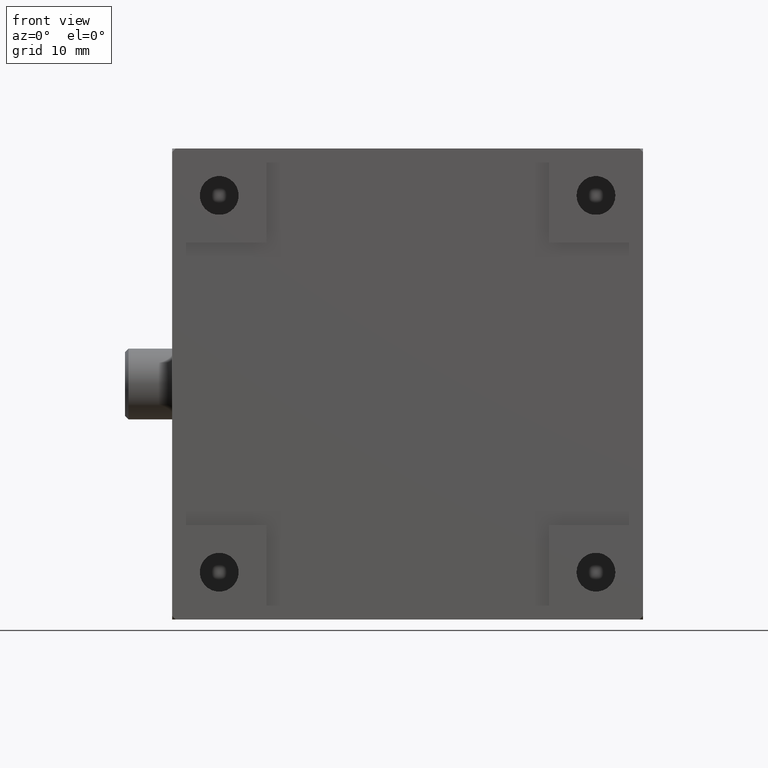
[diagram: clean part render]
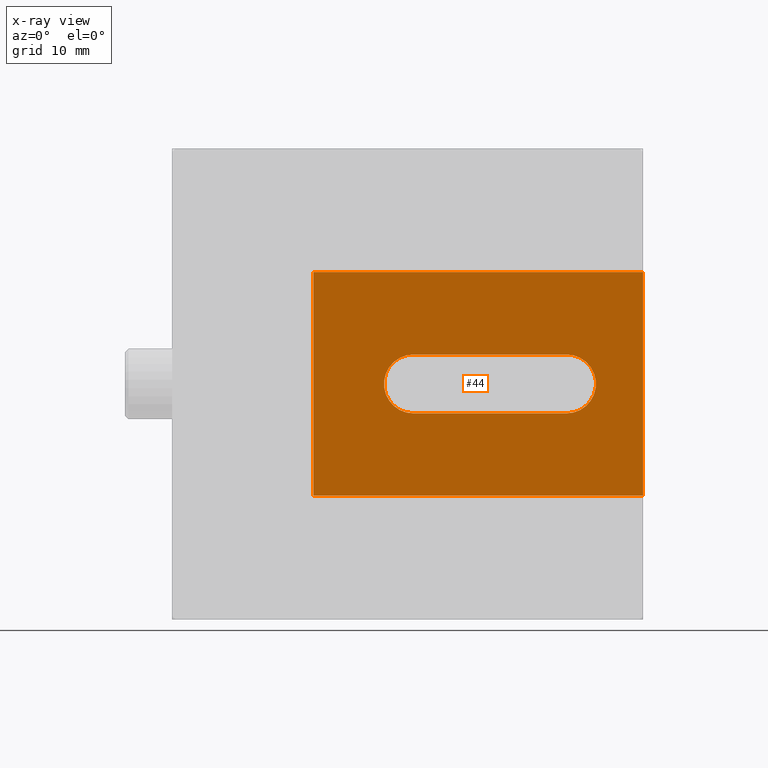
[diagram: x-ray — body ghosted, one internal face saturated and labeled with its STEP entity id]
A machine part, front view, then the same camera in x-ray: the body is ghosted and one INTERNAL B-rep face — a face not visible from any outside direction — is saturated and labeled: STEP entity #44.
In plain terms, the highlighted planar face has unit normal (0, 1, 0).
Its self-contained STEP definition (entity closure, byte-faithful):
#11 = VECTOR ( 'NONE', #1729, 1000.000000000000000 ) ;
#14 = LINE ( 'NONE', #2767, #2656 ) ;
#44 = ADVANCED_FACE ( 'NONE', ( #2241, #220 ), #590, .F. ) ;
#220 = FACE_OUTER_BOUND ( 'NONE', #1049, .T. ) ;
#310 = EDGE_CURVE ( 'NONE', #3871, #5048, #1492, .T. ) ;
#446 = VERTEX_POINT ( 'NONE', #2138 ) ;
#590 = PLANE ( 'NONE',  #3215 ) ;
#591 = DIRECTION ( 'NONE',  ( 0.000000000000000000, 0.000000000000000000, 1.000000000000000000 ) ) ;
#624 = EDGE_LOOP ( 'NONE', ( #4592, #3914, #1194, #1097 ) ) ;
#667 = DIRECTION ( 'NONE',  ( 0.000000000000000000, -1.000000000000000000, 0.000000000000000000 ) ) ;
#745 = CARTESIAN_POINT ( 'NONE',  ( 33.50000000000000000, 6.200000000000001066, 17.50000000000000000 ) ) ;
#775 = VECTOR ( 'NONE', #2763, 1000.000000000000000 ) ;
#785 = EDGE_CURVE ( 'NONE', #5048, #2342, #2358, .T. ) ;
#845 = EDGE_CURVE ( 'NONE', #446, #3871, #14, .T. ) ;
#855 = LINE ( 'NONE', #2467, #2527 ) ;
#871 = VERTEX_POINT ( 'NONE', #4760 ) ;
#1049 = EDGE_LOOP ( 'NONE', ( #1990, #3452, #2239, #4906 ) ) ;
#1097 = ORIENTED_EDGE ( 'NONE', *, *, #3935, .F. ) ;
#1194 = ORIENTED_EDGE ( 'NONE', *, *, #845, .F. ) ;
#1261 = VERTEX_POINT ( 'NONE', #4954 ) ;
#1406 = CARTESIAN_POINT ( 'NONE',  ( 33.50000000000000000, 6.200000000000001066, 20.00000000000000000 ) ) ;
#1492 = CIRCLE ( 'NONE', #3309, 2.499999999999998668 ) ;
#1577 = DIRECTION ( 'NONE',  ( -1.000000000000000000, 0.000000000000000000, 0.000000000000000000 ) ) ;
#1729 = DIRECTION ( 'NONE',  ( -1.000000000000000000, 0.000000000000000000, 0.000000000000000000 ) ) ;
#1790 = CARTESIAN_POINT ( 'NONE',  ( 12.00000000000000000, 6.200000000000001066, 10.50200000000000067 ) ) ;
#1906 = CARTESIAN_POINT ( 'NONE',  ( 12.00000000000000000, 6.200000000000001066, 17.50000000000000000 ) ) ;
#1990 = ORIENTED_EDGE ( 'NONE', *, *, #2184, .T. ) ;
#2001 = DIRECTION ( 'NONE',  ( 1.000000000000000000, 0.000000000000000000, 0.000000000000000000 ) ) ;
#2009 = CIRCLE ( 'NONE', #4895, 2.500000000000002220 ) ;
#2014 = EDGE_CURVE ( 'NONE', #871, #4709, #2612, .T. ) ;
#2138 = CARTESIAN_POINT ( 'NONE',  ( 33.50000000000000000, 6.200000000000001066, 22.50000000000000000 ) ) ;
#2184 = EDGE_CURVE ( 'NONE', #2218, #1261, #855, .T. ) ;
#2196 = DIRECTION ( 'NONE',  ( -1.000000000000000000, 0.000000000000000000, 0.000000000000000000 ) ) ;
#2218 = VERTEX_POINT ( 'NONE', #3721 ) ;
#2239 = ORIENTED_EDGE ( 'NONE', *, *, #2014, .F. ) ;
#2241 = FACE_BOUND ( 'NONE', #624, .T. ) ;
#2243 = CARTESIAN_POINT ( 'NONE',  ( 12.00000000000000000, 6.200000000000001066, 10.50200000000000067 ) ) ;
#2342 = VERTEX_POINT ( 'NONE', #745 ) ;
#2358 = LINE ( 'NONE', #1906, #4469 ) ;
#2412 = CARTESIAN_POINT ( 'NONE',  ( 12.00000000000000000, 6.200000000000010836, 10.50199999999998290 ) ) ;
#2467 = CARTESIAN_POINT ( 'NONE',  ( 12.00000000000000000, 6.200000000000001066, 29.49900000000000233 ) ) ;
#2527 = VECTOR ( 'NONE', #1577, 1000.000000000000000 ) ;
#2612 = LINE ( 'NONE', #4893, #11 ) ;
#2656 = VECTOR ( 'NONE', #3639, 1000.000000000000000 ) ;
#2763 = DIRECTION ( 'NONE',  ( 0.000000000000000000, 0.000000000000000000, 1.000000000000000000 ) ) ;
#2767 = CARTESIAN_POINT ( 'NONE',  ( 12.00000000000000000, 6.200000000000001066, 22.50000000000000000 ) ) ;
#3031 = LINE ( 'NONE', #2243, #4027 ) ;
#3144 = LINE ( 'NONE', #4733, #775 ) ;
#3215 = AXIS2_PLACEMENT_3D ( 'NONE', #1790, #4538, #2196 ) ;
#3230 = DIRECTION ( 'NONE',  ( 0.000000000000000000, -1.000000000000000000, 0.000000000000000000 ) ) ;
#3309 = AXIS2_PLACEMENT_3D ( 'NONE', #5147, #3230, #2001 ) ;
#3452 = ORIENTED_EDGE ( 'NONE', *, *, #5103, .F. ) ;
#3634 = CARTESIAN_POINT ( 'NONE',  ( 20.50000000000000000, 6.200000000000001066, 22.50000000000000000 ) ) ;
#3639 = DIRECTION ( 'NONE',  ( -1.000000000000000000, 0.000000000000000000, 0.000000000000000000 ) ) ;
#3721 = CARTESIAN_POINT ( 'NONE',  ( 40.00000000000000711, 6.200000000000001066, 29.49900000000000588 ) ) ;
#3787 = DIRECTION ( 'NONE',  ( 1.000000000000000000, 0.000000000000000000, 0.000000000000000000 ) ) ;
#3871 = VERTEX_POINT ( 'NONE', #3634 ) ;
#3914 = ORIENTED_EDGE ( 'NONE', *, *, #310, .F. ) ;
#3935 = EDGE_CURVE ( 'NONE', #2342, #446, #2009, .T. ) ;
#3982 = CARTESIAN_POINT ( 'NONE',  ( 20.50000000000000000, 6.200000000000001066, 17.50000000000000000 ) ) ;
#4027 = VECTOR ( 'NONE', #591, 1000.000000000000000 ) ;
#4469 = VECTOR ( 'NONE', #5018, 1000.000000000000000 ) ;
#4538 = DIRECTION ( 'NONE',  ( 0.000000000000000000, 1.000000000000000000, 0.000000000000000000 ) ) ;
#4592 = ORIENTED_EDGE ( 'NONE', *, *, #785, .F. ) ;
#4709 = VERTEX_POINT ( 'NONE', #2412 ) ;
#4733 = CARTESIAN_POINT ( 'NONE',  ( 40.00000000000000000, 6.200000000000001066, 0.000000000000000000 ) ) ;
#4760 = CARTESIAN_POINT ( 'NONE',  ( 40.00000000000000000, 6.200000000000010836, 10.50199999999998290 ) ) ;
#4893 = CARTESIAN_POINT ( 'NONE',  ( 12.00000000000000000, 6.200000000000001066, 10.50200000000000067 ) ) ;
#4895 = AXIS2_PLACEMENT_3D ( 'NONE', #1406, #667, #3787 ) ;
#4906 = ORIENTED_EDGE ( 'NONE', *, *, #4913, .T. ) ;
#4913 = EDGE_CURVE ( 'NONE', #871, #2218, #3144, .T. ) ;
#4954 = CARTESIAN_POINT ( 'NONE',  ( 12.00000000000000000, 6.200000000000001066, 29.49900000000000588 ) ) ;
#5018 = DIRECTION ( 'NONE',  ( 1.000000000000000000, -0.000000000000000000, -0.000000000000000000 ) ) ;
#5048 = VERTEX_POINT ( 'NONE', #3982 ) ;
#5103 = EDGE_CURVE ( 'NONE', #4709, #1261, #3031, .T. ) ;
#5147 = CARTESIAN_POINT ( 'NONE',  ( 20.50000000000000000, 6.200000000000001066, 20.00000000000000000 ) ) ;